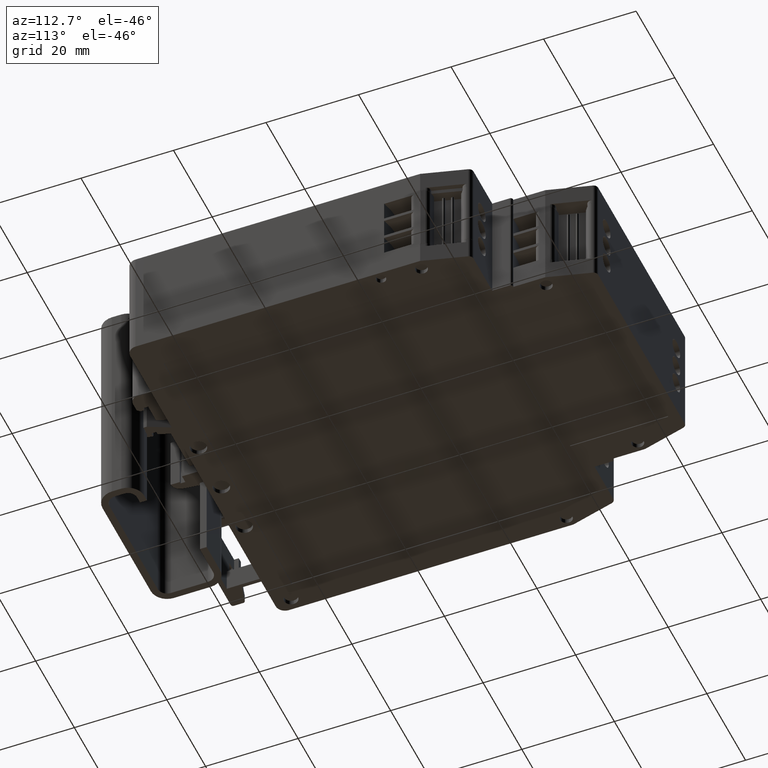
[diagram: clean part render]
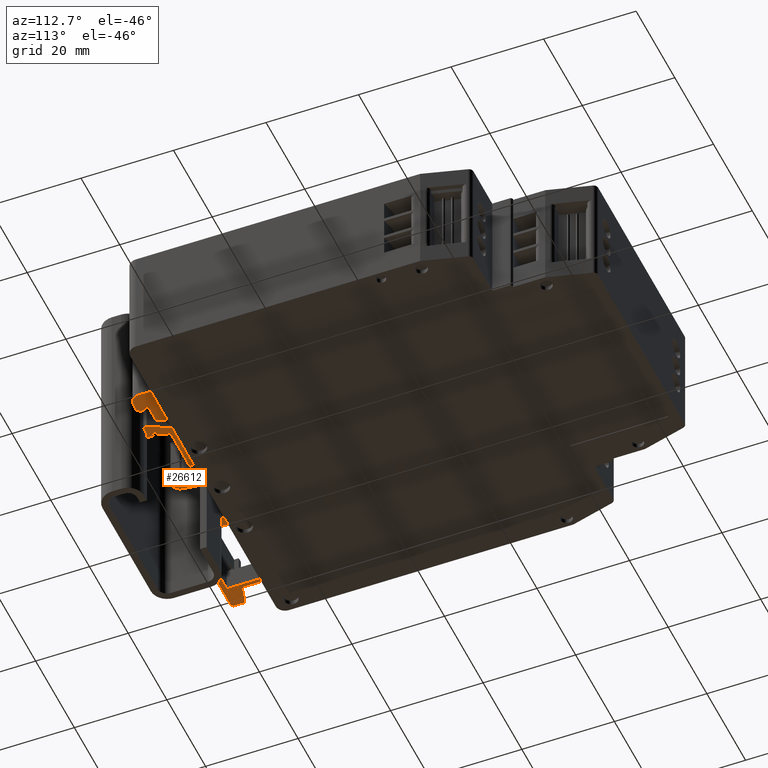
[diagram: same view with one face highlighted and labeled with its STEP entity id]
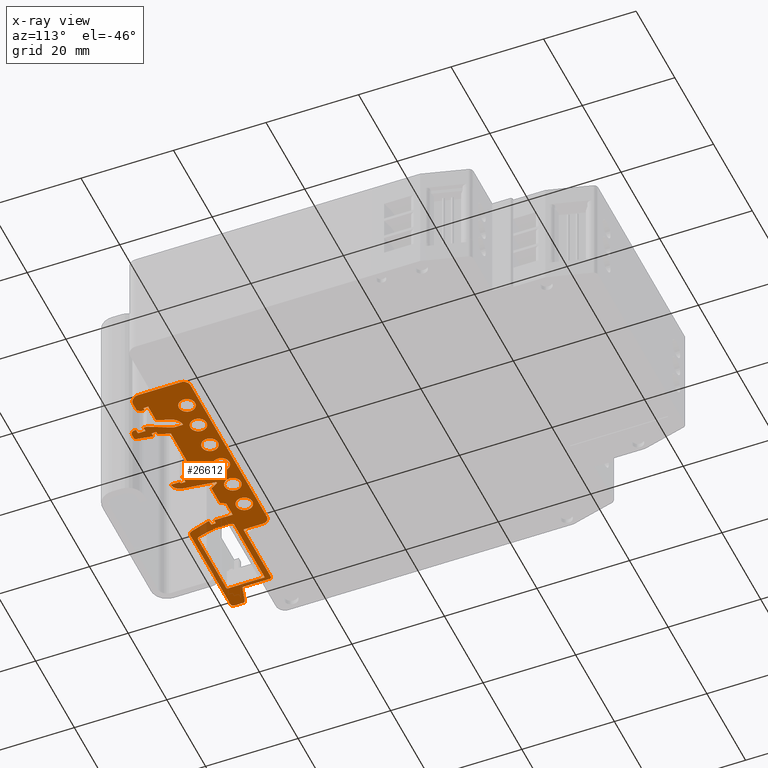
[diagram: x-ray of the same camera — body ghosted, the highlighted face saturated]
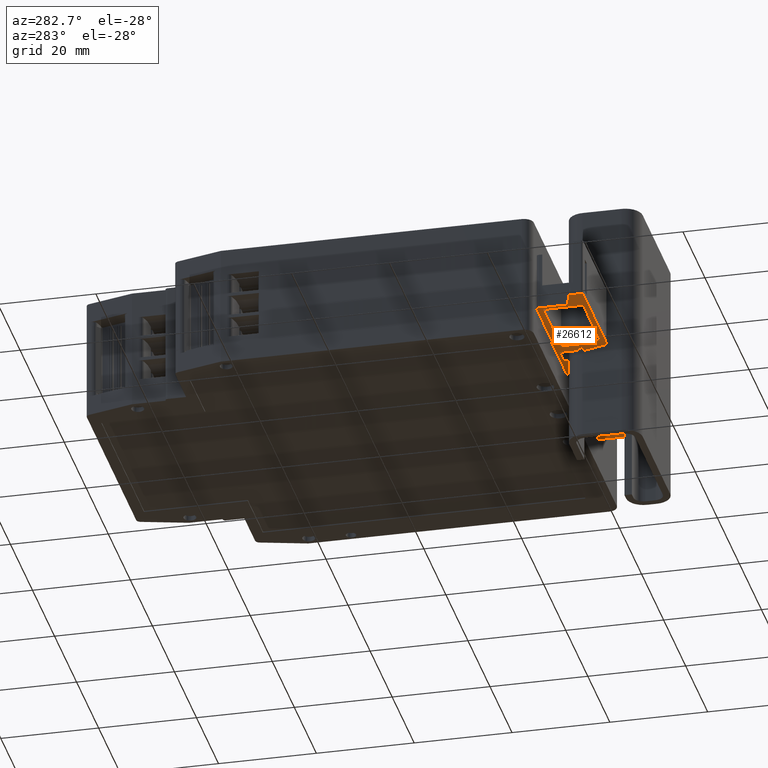
[diagram: same view with one face highlighted and labeled with its STEP entity id]
A machine part, auxiliary view. The second image highlights one B-rep face of the part: STEP entity #26612.
The next image is the same camera in x-ray: the body ghosted, the highlighted face saturated — about 4% of this face is hidden behind the body in this view.
A second angle (auxiliary view) of the same face is appended — the face is thin or edge-on in the first view.
In plain terms, the highlighted planar face has unit normal (0, 0, 1).
Its self-contained STEP definition (entity closure, byte-faithful):
#23650=CARTESIAN_POINT('',(391.350000000000020,52.0,0.0));
#23651=VERTEX_POINT('',#23650);
#23652=CARTESIAN_POINT('',(391.350000000000020,60.200000000000003,0.0));
#23653=VERTEX_POINT('',#23652);
#23654=CARTESIAN_POINT('',(391.350000000000020,52.0,0.0));
#23655=DIRECTION('',(0.0,1.0,0.0));
#23656=VECTOR('',#23655,8.200000000000003);
#23657=LINE('',#23654,#23656);
#23658=EDGE_CURVE('',#23651,#23653,#23657,.T.);
#23716=CARTESIAN_POINT('',(406.144539736285990,52.0,0.0));
#23717=VERTEX_POINT('',#23716);
#23724=CARTESIAN_POINT('',(406.144539736285990,52.0,0.0));
#23725=DIRECTION('',(-1.0,0.0,0.0));
#23726=VECTOR('',#23725,14.794539736285969);
#23727=LINE('',#23724,#23726);
#23728=EDGE_CURVE('',#23717,#23651,#23727,.T.);
#23769=CARTESIAN_POINT('',(407.699999999999990,60.200000000000003,0.0));
#23770=VERTEX_POINT('',#23769);
#23771=CARTESIAN_POINT('',(407.699999999999990,56.000000000000099,0.0));
#23772=VERTEX_POINT('',#23771);
#23773=CARTESIAN_POINT('',(407.699999999999990,60.200000000000003,0.0));
#23774=DIRECTION('',(0.0,-1.0,0.0));
#23775=VECTOR('',#23774,4.199999999999903);
#23776=LINE('',#23773,#23775);
#23777=EDGE_CURVE('',#23770,#23772,#23776,.T.);
#23809=CARTESIAN_POINT('',(406.727502649430960,52.370590477448808,0.0));
#23810=VERTEX_POINT('',#23809);
#23811=CARTESIAN_POINT('',(407.699999999999990,56.000000000000099,0.0));
#23812=DIRECTION('',(-0.258819045102417,-0.965925826289096,0.0));
#23813=VECTOR('',#23812,3.757441227650777);
#23814=LINE('',#23811,#23813);
#23815=EDGE_CURVE('',#23772,#23810,#23814,.T.);
#23840=CARTESIAN_POINT('',(406.194539736286000,52.565161268642100,0.0));
#23841=DIRECTION('',(0.0,0.0,1.0));
#23842=DIRECTION('',(1.0,0.0,0.0));
#23843=AXIS2_PLACEMENT_3D('',#23840,#23841,#23842);
#23844=CIRCLE('',#23843,0.567368715715929);
#23845=EDGE_CURVE('',#23717,#23810,#23844,.T.);
#23864=CARTESIAN_POINT('',(407.699999999999990,60.200000000000003,0.0));
#23865=DIRECTION('',(-1.0,0.0,0.0));
#23866=VECTOR('',#23865,16.349999999999966);
#23867=LINE('',#23864,#23866);
#23868=EDGE_CURVE('',#23770,#23653,#23867,.T.);
#23927=CARTESIAN_POINT('',(436.671830943409990,59.500000000000000,0.0));
#23928=VERTEX_POINT('',#23927);
#23945=CARTESIAN_POINT('',(438.949999999999990,54.614450692051093,0.0));
#23946=VERTEX_POINT('',#23945);
#23953=CARTESIAN_POINT('',(438.949999999999990,54.614450692051093,0.0));
#23954=DIRECTION('',(-0.422618261740634,0.906307787036680,0.0));
#23955=VECTOR('',#23954,5.390607228393126);
#23956=LINE('',#23953,#23955);
#23957=EDGE_CURVE('',#23946,#23928,#23956,.T.);
#23969=CARTESIAN_POINT('',(436.649999999999980,51.0,0.0));
#23970=VERTEX_POINT('',#23969);
#23985=CARTESIAN_POINT('',(435.979957473308050,54.799999999999997,0.0));
#23986=VERTEX_POINT('',#23985);
#23993=CARTESIAN_POINT('',(435.979957473308050,54.799999999999997,0.0));
#23994=DIRECTION('',(0.173648177666871,-0.984807753012219,0.0));
#23995=VECTOR('',#23994,3.858621125165787);
#23996=LINE('',#23993,#23995);
#23997=EDGE_CURVE('',#23986,#23970,#23996,.T.);
#24126=CARTESIAN_POINT('',(390.550000000000010,55.0,0.0));
#24127=VERTEX_POINT('',#24126);
#24151=CARTESIAN_POINT('',(390.550000000000010,60.899999999999999,0.0));
#24152=VERTEX_POINT('',#24151);
#24159=CARTESIAN_POINT('',(390.550000000000010,55.0,0.0));
#24160=DIRECTION('',(0.0,1.0,0.0));
#24161=VECTOR('',#24160,5.899999999999999);
#24162=LINE('',#24159,#24161);
#24163=EDGE_CURVE('',#24127,#24152,#24162,.T.);
#24175=CARTESIAN_POINT('',(438.949999999999990,52.0,0.0));
#24176=VERTEX_POINT('',#24175);
#24183=CARTESIAN_POINT('',(438.949999999999990,52.299999999999997,0.0));
#24184=VERTEX_POINT('',#24183);
#24185=CARTESIAN_POINT('',(438.949999999999990,52.299999999999997,0.0));
#24186=DIRECTION('',(0.0,-1.0,0.0));
#24187=VECTOR('',#24186,0.299999999999997);
#24188=LINE('',#24185,#24187);
#24189=EDGE_CURVE('',#24184,#24176,#24188,.T.);
#24213=CARTESIAN_POINT('',(437.949999999999990,53.899999999999999,0.0));
#24214=VERTEX_POINT('',#24213);
#24215=CARTESIAN_POINT('',(438.949999999999990,53.899999999999999,0.0));
#24216=VERTEX_POINT('',#24215);
#24217=CARTESIAN_POINT('',(437.949999999999990,53.899999999999999,0.0));
#24218=DIRECTION('',(1.0,0.0,0.0));
#24219=VECTOR('',#24218,1.0);
#24220=LINE('',#24217,#24219);
#24221=EDGE_CURVE('',#24214,#24216,#24220,.T.);
#24254=CARTESIAN_POINT('',(436.671830943409990,61.495393145525796,0.0));
#24255=VERTEX_POINT('',#24254);
#24256=CARTESIAN_POINT('',(436.671830943409990,59.500000000000000,0.0));
#24257=DIRECTION('',(0.0,1.0,0.0));
#24258=VECTOR('',#24257,1.995393145525796);
#24259=LINE('',#24256,#24258);
#24260=EDGE_CURVE('',#23928,#24255,#24259,.T.);
#24303=CARTESIAN_POINT('',(439.908515318218970,56.999999999958696,0.0));
#24304=VERTEX_POINT('',#24303);
#24319=CARTESIAN_POINT('',(438.869361970446960,59.855050358314202,0.0));
#24320=VERTEX_POINT('',#24319);
#24327=CARTESIAN_POINT('',(438.869361970446960,59.855050358314202,0.0));
#24328=DIRECTION('',(0.342020143325540,-0.939692620785955,0.0));
#24329=VECTOR('',#24328,3.038281130661165);
#24330=LINE('',#24327,#24329);
#24331=EDGE_CURVE('',#24320,#24304,#24330,.T.);
#24341=CARTESIAN_POINT('',(423.550000000000010,61.500000000000000,0.0));
#24342=VERTEX_POINT('',#24341);
#24343=CARTESIAN_POINT('',(425.550000000000010,61.500000000000000,0.0));
#24344=VERTEX_POINT('',#24343);
#24345=CARTESIAN_POINT('',(423.550000000000010,61.500000000000000,0.0));
#24346=DIRECTION('',(1.0,0.0,0.0));
#24347=VECTOR('',#24346,2.0);
#24348=LINE('',#24345,#24347);
#24349=EDGE_CURVE('',#24342,#24344,#24348,.T.);
#24381=CARTESIAN_POINT('',(443.949999999999990,56.999999999958696,0.0));
#24382=VERTEX_POINT('',#24381);
#24383=CARTESIAN_POINT('',(443.949999999999990,56.999999999958696,0.0));
#24384=DIRECTION('',(-1.0,0.0,0.0));
#24385=VECTOR('',#24384,4.041484681781014);
#24386=LINE('',#24383,#24385);
#24387=EDGE_CURVE('',#24382,#24304,#24386,.T.);
#24412=CARTESIAN_POINT('',(425.550000000000010,58.299999999999997,0.0));
#24413=VERTEX_POINT('',#24412);
#24414=CARTESIAN_POINT('',(435.296245059088960,58.299999999999997,0.0));
#24415=VERTEX_POINT('',#24414);
#24416=CARTESIAN_POINT('',(425.550000000000010,58.299999999999997,0.0));
#24417=DIRECTION('',(1.0,0.0,0.0));
#24418=VECTOR('',#24417,9.746245059088949);
#24419=LINE('',#24416,#24418);
#24420=EDGE_CURVE('',#24413,#24415,#24419,.T.);
#24461=CARTESIAN_POINT('',(436.850000000000020,54.799999999999997,0.0));
#24462=VERTEX_POINT('',#24461);
#24469=CARTESIAN_POINT('',(436.850000000000020,54.799999999999997,0.0));
#24470=DIRECTION('',(-1.0,0.0,0.0));
#24471=VECTOR('',#24470,0.870042526691975);
#24472=LINE('',#24469,#24471);
#24473=EDGE_CURVE('',#24462,#23986,#24472,.T.);
#24483=CARTESIAN_POINT('',(443.350000000000020,55.999999999958696,0.0));
#24484=VERTEX_POINT('',#24483);
#24485=CARTESIAN_POINT('',(443.350000000000020,55.100000000000001,0.0));
#24486=VERTEX_POINT('',#24485);
#24487=CARTESIAN_POINT('',(443.350000000000020,55.999999999958696,0.0));
#24488=DIRECTION('',(0.0,-1.0,0.0));
#24489=VECTOR('',#24488,0.899999999958695);
#24490=LINE('',#24487,#24489);
#24491=EDGE_CURVE('',#24484,#24486,#24490,.T.);
#24525=CARTESIAN_POINT('',(443.949999999999990,54.500000000000000,0.0));
#24526=VERTEX_POINT('',#24525);
#24540=CARTESIAN_POINT('',(443.350000000000020,55.100000000000001,0.0));
#24541=DIRECTION('',(0.707106781186527,-0.707106781186568,0.0));
#24542=VECTOR('',#24541,0.848528137423834);
#24543=LINE('',#24540,#24542);
#24544=EDGE_CURVE('',#24486,#24526,#24543,.T.);
#24554=CARTESIAN_POINT('',(437.949999999999990,51.0,0.0));
#24555=VERTEX_POINT('',#24554);
#24556=CARTESIAN_POINT('',(436.649999999999980,51.0,0.0));
#24557=DIRECTION('',(1.0,0.0,0.0));
#24558=VECTOR('',#24557,1.300000000000011);
#24559=LINE('',#24556,#24558);
#24560=EDGE_CURVE('',#23970,#24555,#24559,.T.);
#24585=CARTESIAN_POINT('',(445.699999999999990,54.500000000000000,0.0));
#24586=VERTEX_POINT('',#24585);
#24587=CARTESIAN_POINT('',(443.949999999999990,54.500000000000000,0.0));
#24588=DIRECTION('',(1.0,0.0,0.0));
#24589=VECTOR('',#24588,1.750000000000000);
#24590=LINE('',#24587,#24589);
#24591=EDGE_CURVE('',#24526,#24586,#24590,.T.);
#24616=CARTESIAN_POINT('',(447.699999999999990,56.500000000000000,0.0));
#24617=VERTEX_POINT('',#24616);
#24618=CARTESIAN_POINT('',(445.699999999999990,56.500000000000000,0.0));
#24619=DIRECTION('',(0.0,0.0,1.0));
#24620=DIRECTION('',(1.0,0.0,0.0));
#24621=AXIS2_PLACEMENT_3D('',#24618,#24619,#24620);
#24622=CIRCLE('',#24621,2.0);
#24623=EDGE_CURVE('',#24586,#24617,#24622,.T.);
#24649=CARTESIAN_POINT('',(447.699999999999990,65.599999999999994,0.0));
#24650=VERTEX_POINT('',#24649);
#24651=CARTESIAN_POINT('',(447.699999999999990,56.500000000000000,0.0));
#24652=DIRECTION('',(0.0,1.0,0.0));
#24653=VECTOR('',#24652,9.099999999999994);
#24654=LINE('',#24651,#24653);
#24655=EDGE_CURVE('',#24617,#24650,#24654,.T.);
#24680=CARTESIAN_POINT('',(446.199999999999990,67.099999999999994,0.0));
#24681=VERTEX_POINT('',#24680);
#24682=CARTESIAN_POINT('',(446.199999999999990,65.599999999999994,0.0));
#24683=DIRECTION('',(0.0,0.0,1.0));
#24684=DIRECTION('',(1.0,0.0,0.0));
#24685=AXIS2_PLACEMENT_3D('',#24682,#24683,#24684);
#24686=CIRCLE('',#24685,1.500000000000000);
#24687=EDGE_CURVE('',#24650,#24681,#24686,.T.);
#24713=CARTESIAN_POINT('',(406.699999999999990,67.099999999999994,0.0));
#24714=VERTEX_POINT('',#24713);
#24715=CARTESIAN_POINT('',(446.199999999999990,67.099999999999994,0.0));
#24716=DIRECTION('',(-1.0,0.0,0.0));
#24717=VECTOR('',#24716,39.500000000000000);
#24718=LINE('',#24715,#24717);
#24719=EDGE_CURVE('',#24681,#24714,#24718,.T.);
#24744=CARTESIAN_POINT('',(405.199999999999990,65.599999999999994,0.0));
#24745=VERTEX_POINT('',#24744);
#24746=CARTESIAN_POINT('',(406.699999999999990,65.599999999999994,0.0));
#24747=DIRECTION('',(0.0,0.0,1.0));
#24748=DIRECTION('',(1.0,0.0,0.0));
#24749=AXIS2_PLACEMENT_3D('',#24746,#24747,#24748);
#24750=CIRCLE('',#24749,1.500000000000000);
#24751=EDGE_CURVE('',#24714,#24745,#24750,.T.);
#24779=CARTESIAN_POINT('',(405.199999999999990,61.600000000000001,0.0));
#24780=VERTEX_POINT('',#24779);
#24794=CARTESIAN_POINT('',(405.199999999999990,65.599999999999994,0.0));
#24795=DIRECTION('',(0.0,-1.0,0.0));
#24796=VECTOR('',#24795,3.999999999999993);
#24797=LINE('',#24794,#24796);
#24798=EDGE_CURVE('',#24745,#24780,#24797,.T.);
#24809=CARTESIAN_POINT('',(436.520130418482040,59.0,0.0));
#24810=DIRECTION('',(0.0,0.0,1.0));
#24811=DIRECTION('',(1.0,0.0,0.0));
#24812=AXIS2_PLACEMENT_3D('',#24809,#24810,#24811);
#24813=CIRCLE('',#24812,2.500000000000057);
#24814=EDGE_CURVE('',#24320,#24255,#24813,.T.);
#24832=CARTESIAN_POINT('',(405.0,61.399999999999999,0.0));
#24833=VERTEX_POINT('',#24832);
#24834=CARTESIAN_POINT('',(391.050000000000010,61.399999999999999,0.0));
#24835=VERTEX_POINT('',#24834);
#24836=CARTESIAN_POINT('',(405.0,61.399999999999999,0.0));
#24837=DIRECTION('',(-1.0,0.0,0.0));
#24838=VECTOR('',#24837,13.949999999999989);
#24839=LINE('',#24836,#24838);
#24840=EDGE_CURVE('',#24833,#24835,#24839,.T.);
#24872=CARTESIAN_POINT('',(391.050000000000010,60.899999999999999,0.0));
#24873=DIRECTION('',(0.0,0.0,1.0));
#24874=DIRECTION('',(1.0,0.0,0.0));
#24875=AXIS2_PLACEMENT_3D('',#24872,#24873,#24874);
#24876=CIRCLE('',#24875,0.500000000000000);
#24877=EDGE_CURVE('',#24835,#24152,#24876,.T.);
#24921=CARTESIAN_POINT('',(425.550000000000010,61.500000000000000,0.0));
#24922=DIRECTION('',(0.0,-1.0,0.0));
#24923=VECTOR('',#24922,3.200000000000003);
#24924=LINE('',#24921,#24923);
#24925=EDGE_CURVE('',#24344,#24413,#24924,.T.);
#24935=CARTESIAN_POINT('',(386.820590477449000,54.000707730187401,0.0));
#24936=VERTEX_POINT('',#24935);
#24937=CARTESIAN_POINT('',(390.550000000000010,55.0,0.0));
#24938=DIRECTION('',(-0.965925826289061,-0.258819045102549,0.0));
#24939=VECTOR('',#24938,3.860968845691631);
#24940=LINE('',#24937,#24939);
#24941=EDGE_CURVE('',#24127,#24936,#24940,.T.);
#24959=CARTESIAN_POINT('',(386.449999999999990,53.517744817042896,0.0));
#24960=VERTEX_POINT('',#24959);
#24961=CARTESIAN_POINT('',(386.949999999999990,53.517744817042896,0.0));
#24962=DIRECTION('',(0.0,0.0,1.0));
#24963=DIRECTION('',(1.0,0.0,0.0));
#24964=AXIS2_PLACEMENT_3D('',#24961,#24962,#24963);
#24965=CIRCLE('',#24964,0.500000000000000);
#24966=EDGE_CURVE('',#24936,#24960,#24965,.T.);
#24984=CARTESIAN_POINT('',(386.449999999999990,51.500000000000000,0.0));
#24985=VERTEX_POINT('',#24984);
#24986=CARTESIAN_POINT('',(386.449999999999990,53.517744817042896,0.0));
#24987=DIRECTION('',(0.0,-1.0,0.0));
#24988=VECTOR('',#24987,2.017744817042896);
#24989=LINE('',#24986,#24988);
#24990=EDGE_CURVE('',#24960,#24985,#24989,.T.);
#25017=CARTESIAN_POINT('',(386.949999999999990,51.0,0.0));
#25018=VERTEX_POINT('',#25017);
#25019=CARTESIAN_POINT('',(386.949999999999990,51.500000000000000,0.0));
#25020=DIRECTION('',(0.0,0.0,1.0));
#25021=DIRECTION('',(1.0,0.0,0.0));
#25022=AXIS2_PLACEMENT_3D('',#25019,#25020,#25021);
#25023=CIRCLE('',#25022,0.500000000000000);
#25024=EDGE_CURVE('',#24985,#25018,#25023,.T.);
#25050=CARTESIAN_POINT('',(407.812002724355980,51.0,0.0));
#25051=VERTEX_POINT('',#25050);
#25052=CARTESIAN_POINT('',(386.949999999999990,51.0,0.0));
#25053=DIRECTION('',(1.0,0.0,0.0));
#25054=VECTOR('',#25053,20.862002724355989);
#25055=LINE('',#25052,#25054);
#25056=EDGE_CURVE('',#25018,#25051,#25055,.T.);
#25106=CARTESIAN_POINT('',(408.767561671095000,51.705199899410403,0.0));
#25107=VERTEX_POINT('',#25106);
#25108=CARTESIAN_POINT('',(407.812002724355980,52.0,0.0));
#25109=DIRECTION('',(0.0,0.0,1.0));
#25110=DIRECTION('',(1.0,0.0,0.0));
#25111=AXIS2_PLACEMENT_3D('',#25108,#25109,#25110);
#25112=CIRCLE('',#25111,1.0);
#25113=EDGE_CURVE('',#25051,#25107,#25112,.T.);
#25139=CARTESIAN_POINT('',(410.0,55.700000000000102,0.0));
#25140=VERTEX_POINT('',#25139);
#25141=CARTESIAN_POINT('',(408.767561671095000,51.705199899410403,0.0));
#25142=DIRECTION('',(0.294800100589526,0.955558946738717,0.0));
#25143=VECTOR('',#25142,4.180589919882795);
#25144=LINE('',#25141,#25143);
#25145=EDGE_CURVE('',#25107,#25140,#25144,.T.);
#25172=CARTESIAN_POINT('',(410.0,55.999999999958696,0.0));
#25173=VERTEX_POINT('',#25172);
#25187=CARTESIAN_POINT('',(410.0,55.700000000000102,0.0));
#25188=DIRECTION('',(0.0,1.0,0.0));
#25189=VECTOR('',#25188,0.299999999958594);
#25190=LINE('',#25187,#25189);
#25191=EDGE_CURVE('',#25140,#25173,#25190,.T.);
#25201=CARTESIAN_POINT('',(409.850000000000020,56.999999999958696,0.0));
#25202=VERTEX_POINT('',#25201);
#25219=CARTESIAN_POINT('',(408.949999999999990,56.999999999958696,0.0));
#25220=VERTEX_POINT('',#25219);
#25227=CARTESIAN_POINT('',(409.850000000000020,56.999999999958696,0.0));
#25228=DIRECTION('',(-1.0,0.0,0.0));
#25229=VECTOR('',#25228,0.900000000000034);
#25230=LINE('',#25227,#25229);
#25231=EDGE_CURVE('',#25202,#25220,#25230,.T.);
#25250=CARTESIAN_POINT('',(443.949999999999990,55.999999999958696,0.0));
#25251=VERTEX_POINT('',#25250);
#25258=CARTESIAN_POINT('',(443.350000000000020,55.999999999958696,0.0));
#25259=DIRECTION('',(1.0,0.0,0.0));
#25260=VECTOR('',#25259,0.599999999999966);
#25261=LINE('',#25258,#25260);
#25262=EDGE_CURVE('',#24484,#25251,#25261,.T.);
#25280=CARTESIAN_POINT('',(408.949999999999990,55.999999999958696,0.0));
#25281=VERTEX_POINT('',#25280);
#25288=CARTESIAN_POINT('',(408.949999999999990,56.999999999958696,0.0));
#25289=DIRECTION('',(0.0,-1.0,0.0));
#25290=VECTOR('',#25289,1.0);
#25291=LINE('',#25288,#25290);
#25292=EDGE_CURVE('',#25220,#25281,#25291,.T.);
#25305=CARTESIAN_POINT('',(409.850000000000020,61.0,0.0));
#25306=VERTEX_POINT('',#25305);
#25320=CARTESIAN_POINT('',(409.850000000000020,56.999999999958696,0.0));
#25321=DIRECTION('',(0.0,1.0,0.0));
#25322=VECTOR('',#25321,4.000000000041304);
#25323=LINE('',#25320,#25322);
#25324=EDGE_CURVE('',#25202,#25306,#25323,.T.);
#25334=CARTESIAN_POINT('',(408.949999999999990,55.999999999958696,0.0));
#25335=DIRECTION('',(1.0,0.0,0.0));
#25336=VECTOR('',#25335,1.050000000000011);
#25337=LINE('',#25334,#25336);
#25338=EDGE_CURVE('',#25281,#25173,#25337,.T.);
#25356=CARTESIAN_POINT('',(443.949999999999990,55.999999999958696,0.0));
#25357=DIRECTION('',(0.0,1.0,0.0));
#25358=VECTOR('',#25357,1.0);
#25359=LINE('',#25356,#25358);
#25360=EDGE_CURVE('',#25251,#24382,#25359,.T.);
#25379=CARTESIAN_POINT('',(405.0,61.600000000000001,0.0));
#25380=DIRECTION('',(0.0,0.0,-1.0));
#25381=DIRECTION('',(-1.0,0.0,0.0));
#25382=AXIS2_PLACEMENT_3D('',#25379,#25380,#25381);
#25383=CIRCLE('',#25382,0.199999999999989);
#25384=EDGE_CURVE('',#24780,#24833,#25383,.T.);
#25402=CARTESIAN_POINT('',(437.949999999999990,52.299999999999997,0.0));
#25403=VERTEX_POINT('',#25402);
#25404=CARTESIAN_POINT('',(437.949999999999990,52.299999999999997,0.0));
#25405=DIRECTION('',(0.0,1.0,0.0));
#25406=VECTOR('',#25405,1.600000000000001);
#25407=LINE('',#25404,#25406);
#25408=EDGE_CURVE('',#25403,#24214,#25407,.T.);
#25433=CARTESIAN_POINT('',(413.164914703892010,61.0,0.0));
#25434=VERTEX_POINT('',#25433);
#25435=CARTESIAN_POINT('',(409.850000000000020,61.0,0.0));
#25436=DIRECTION('',(1.0,0.0,0.0));
#25437=VECTOR('',#25436,3.314914703891986);
#25438=LINE('',#25435,#25437);
#25439=EDGE_CURVE('',#25306,#25434,#25438,.T.);
#25464=CARTESIAN_POINT('',(413.800000000000010,59.899999999999999,0.0));
#25465=VERTEX_POINT('',#25464);
#25466=CARTESIAN_POINT('',(413.164914703892010,61.0,0.0));
#25467=DIRECTION('',(0.499999999999653,-0.866025403784639,0.0));
#25468=VECTOR('',#25467,1.270170592216885);
#25469=LINE('',#25466,#25468);
#25470=EDGE_CURVE('',#25434,#25465,#25469,.T.);
#25495=CARTESIAN_POINT('',(418.199999999999990,59.899999999999999,0.0));
#25496=VERTEX_POINT('',#25495);
#25497=CARTESIAN_POINT('',(413.800000000000010,59.899999999999999,0.0));
#25498=DIRECTION('',(1.0,0.0,0.0));
#25499=VECTOR('',#25498,4.399999999999977);
#25500=LINE('',#25497,#25499);
#25501=EDGE_CURVE('',#25465,#25496,#25500,.T.);
#25528=CARTESIAN_POINT('',(419.123760430702990,61.500000000000000,0.0));
#25529=VERTEX_POINT('',#25528);
#25543=CARTESIAN_POINT('',(418.199999999999990,59.899999999999999,0.0));
#25544=DIRECTION('',(0.499999999999836,0.866025403784533,0.0));
#25545=VECTOR('',#25544,1.847520861406602);
#25546=LINE('',#25543,#25545);
#25547=EDGE_CURVE('',#25496,#25529,#25546,.T.);
#25576=CARTESIAN_POINT('',(419.410967809756930,61.500000000000000,0.0));
#25577=VERTEX_POINT('',#25576);
#25591=CARTESIAN_POINT('',(419.123760430702990,61.500000000000000,0.0));
#25592=DIRECTION('',(1.0,0.0,0.0));
#25593=VECTOR('',#25592,0.287207379053939);
#25594=LINE('',#25591,#25593);
#25595=EDGE_CURVE('',#25529,#25577,#25594,.T.);
#25623=CARTESIAN_POINT('',(438.949999999999990,54.614450692051093,0.0));
#25624=DIRECTION('',(0.0,-1.0,0.0));
#25625=VECTOR('',#25624,0.714450692051095);
#25626=LINE('',#25623,#25625);
#25627=EDGE_CURVE('',#23946,#24216,#25626,.T.);
#25657=CARTESIAN_POINT('',(436.850000000000020,55.799999999999997,0.0));
#25658=VERTEX_POINT('',#25657);
#25659=CARTESIAN_POINT('',(436.850000000000020,55.799999999999997,0.0));
#25660=DIRECTION('',(0.0,-1.0,0.0));
#25661=VECTOR('',#25660,1.0);
#25662=LINE('',#25659,#25661);
#25663=EDGE_CURVE('',#25658,#24462,#25662,.T.);
#25688=CARTESIAN_POINT('',(436.206170644754020,55.799999999999997,0.0));
#25689=VERTEX_POINT('',#25688);
#25690=CARTESIAN_POINT('',(436.206170644754020,55.799999999999997,0.0));
#25691=DIRECTION('',(1.0,0.0,0.0));
#25692=VECTOR('',#25691,0.643829355245998);
#25693=LINE('',#25690,#25692);
#25694=EDGE_CURVE('',#25689,#25658,#25693,.T.);
#25719=CARTESIAN_POINT('',(438.949999999999990,52.299999999999997,0.0));
#25720=DIRECTION('',(-1.0,0.0,0.0));
#25721=VECTOR('',#25720,1.0);
#25722=LINE('',#25719,#25721);
#25723=EDGE_CURVE('',#24184,#25403,#25722,.T.);
#25741=CARTESIAN_POINT('',(420.368602628747960,54.527852140929497,0.0));
#25742=VERTEX_POINT('',#25741);
#25743=CARTESIAN_POINT('',(419.410967809756930,61.500000000000000,0.0));
#25744=DIRECTION('',(0.136073929535178,-0.990698685625885,0.0));
#25745=VECTOR('',#25744,7.037606852850293);
#25746=LINE('',#25743,#25745);
#25747=EDGE_CURVE('',#25577,#25742,#25746,.T.);
#25774=CARTESIAN_POINT('',(422.250000000000000,52.802501564456200,0.0));
#25775=VERTEX_POINT('',#25774);
#25790=CARTESIAN_POINT('',(422.350000000000020,54.799999999999997,0.0));
#25791=DIRECTION('',(0.0,0.0,1.0));
#25792=DIRECTION('',(1.0,0.0,0.0));
#25793=AXIS2_PLACEMENT_3D('',#25790,#25791,#25792);
#25794=CIRCLE('',#25793,2.0);
#25795=EDGE_CURVE('',#25742,#25775,#25794,.T.);
#25805=CARTESIAN_POINT('',(435.296245059088960,58.299999999999997,0.0));
#25806=DIRECTION('',(0.342020143325522,-0.939692620785962,0.0));
#25807=VECTOR('',#25806,2.660444431189629);
#25808=LINE('',#25805,#25807);
#25809=EDGE_CURVE('',#24415,#25689,#25808,.T.);
#25827=CARTESIAN_POINT('',(422.250000000000000,54.799999999999997,0.0));
#25828=VERTEX_POINT('',#25827);
#25829=CARTESIAN_POINT('',(422.250000000000000,52.802501564456200,0.0));
#25830=DIRECTION('',(0.0,1.0,0.0));
#25831=VECTOR('',#25830,1.997498435543797);
#25832=LINE('',#25829,#25831);
#25833=EDGE_CURVE('',#25775,#25828,#25832,.T.);
#25858=CARTESIAN_POINT('',(421.850000000000020,54.799999999999997,0.0));
#25859=VERTEX_POINT('',#25858);
#25860=CARTESIAN_POINT('',(422.250000000000000,54.799999999999997,0.0));
#25861=DIRECTION('',(-1.0,0.0,0.0));
#25862=VECTOR('',#25861,0.399999999999977);
#25863=LINE('',#25860,#25862);
#25864=EDGE_CURVE('',#25828,#25859,#25863,.T.);
#25889=CARTESIAN_POINT('',(421.850000000000020,55.799999999999997,0.0));
#25890=VERTEX_POINT('',#25889);
#25891=CARTESIAN_POINT('',(421.850000000000020,54.799999999999997,0.0));
#25892=DIRECTION('',(0.0,1.0,0.0));
#25893=VECTOR('',#25892,1.0);
#25894=LINE('',#25891,#25893);
#25895=EDGE_CURVE('',#25859,#25890,#25894,.T.);
#25920=CARTESIAN_POINT('',(423.550000000000010,55.799999999999997,0.0));
#25921=VERTEX_POINT('',#25920);
#25922=CARTESIAN_POINT('',(421.850000000000020,55.799999999999997,0.0));
#25923=DIRECTION('',(1.0,0.0,0.0));
#25924=VECTOR('',#25923,1.699999999999989);
#25925=LINE('',#25922,#25924);
#25926=EDGE_CURVE('',#25890,#25921,#25925,.T.);
#25959=CARTESIAN_POINT('',(423.550000000000010,55.799999999999997,0.0));
#25960=DIRECTION('',(0.0,1.0,0.0));
#25961=VECTOR('',#25960,5.700000000000003);
#25962=LINE('',#25959,#25961);
#25963=EDGE_CURVE('',#25921,#24342,#25962,.T.);
#25982=CARTESIAN_POINT('',(437.949999999999990,52.0,0.0));
#25983=DIRECTION('',(0.0,0.0,-1.0));
#25984=DIRECTION('',(-1.0,0.0,0.0));
#25985=AXIS2_PLACEMENT_3D('',#25982,#25983,#25984);
#25986=CIRCLE('',#25985,1.0);
#25987=EDGE_CURVE('',#24176,#24555,#25986,.T.);
#26199=CARTESIAN_POINT('',(413.449999999999990,64.300000000000097,0.0));
#26200=VERTEX_POINT('',#26199);
#26207=CARTESIAN_POINT('',(409.949999999999990,64.300000000000097,0.0));
#26208=VERTEX_POINT('',#26207);
#26209=CARTESIAN_POINT('',(411.699999999999990,64.300000000000097,0.0));
#26210=DIRECTION('',(0.0,0.0,-1.0));
#26211=DIRECTION('',(-1.0,0.0,0.0));
#26212=AXIS2_PLACEMENT_3D('',#26209,#26210,#26211);
#26213=CIRCLE('',#26212,1.750000000000000);
#26214=EDGE_CURVE('',#26200,#26208,#26213,.T.);
#26231=CARTESIAN_POINT('',(431.199999999999990,64.300000000000097,0.0));
#26232=VERTEX_POINT('',#26231);
#26239=CARTESIAN_POINT('',(429.449999999999990,62.550000000000104,0.0));
#26240=VERTEX_POINT('',#26239);
#26241=CARTESIAN_POINT('',(429.449999999999990,64.300000000000097,0.0));
#26242=DIRECTION('',(0.0,0.0,-1.0));
#26243=DIRECTION('',(-1.0,0.0,0.0));
#26244=AXIS2_PLACEMENT_3D('',#26241,#26242,#26243);
#26245=CIRCLE('',#26244,1.750000000000000);
#26246=EDGE_CURVE('',#26232,#26240,#26245,.T.);
#26248=CARTESIAN_POINT('',(427.699999999999990,64.300000000000097,0.0));
#26249=VERTEX_POINT('',#26248);
#26250=CARTESIAN_POINT('',(429.449999999999990,64.300000000000097,0.0));
#26251=DIRECTION('',(0.0,0.0,-1.0));
#26252=DIRECTION('',(-1.0,0.0,0.0));
#26253=AXIS2_PLACEMENT_3D('',#26250,#26251,#26252);
#26254=CIRCLE('',#26253,1.750000000000000);
#26255=EDGE_CURVE('',#26240,#26249,#26254,.T.);
#26271=CARTESIAN_POINT('',(441.300000000000010,62.550000000000104,0.0));
#26272=VERTEX_POINT('',#26271);
#26273=CARTESIAN_POINT('',(441.300000000000010,66.050000000000097,0.0));
#26274=VERTEX_POINT('',#26273);
#26275=CARTESIAN_POINT('',(441.300000000000010,64.300000000000097,0.0));
#26276=DIRECTION('',(0.0,0.0,1.0));
#26277=DIRECTION('',(0.0,1.0,0.0));
#26278=AXIS2_PLACEMENT_3D('',#26275,#26276,#26277);
#26279=CIRCLE('',#26278,1.750000000000000);
#26280=EDGE_CURVE('',#26272,#26274,#26279,.T.);
#26304=CARTESIAN_POINT('',(419.350000000000020,64.300000000000097,0.0));
#26305=VERTEX_POINT('',#26304);
#26312=CARTESIAN_POINT('',(417.600000000000020,62.550000000000104,0.0));
#26313=VERTEX_POINT('',#26312);
#26314=CARTESIAN_POINT('',(417.600000000000020,64.300000000000097,0.0));
#26315=DIRECTION('',(0.0,0.0,-1.0));
#26316=DIRECTION('',(-1.0,0.0,0.0));
#26317=AXIS2_PLACEMENT_3D('',#26314,#26315,#26316);
#26318=CIRCLE('',#26317,1.750000000000000);
#26319=EDGE_CURVE('',#26305,#26313,#26318,.T.);
#26321=CARTESIAN_POINT('',(415.850000000000020,64.300000000000097,0.0));
#26322=VERTEX_POINT('',#26321);
#26323=CARTESIAN_POINT('',(417.600000000000020,64.300000000000097,0.0));
#26324=DIRECTION('',(0.0,0.0,-1.0));
#26325=DIRECTION('',(-1.0,0.0,0.0));
#26326=AXIS2_PLACEMENT_3D('',#26323,#26324,#26325);
#26327=CIRCLE('',#26326,1.750000000000000);
#26328=EDGE_CURVE('',#26313,#26322,#26327,.T.);
#26346=CARTESIAN_POINT('',(437.149999999999980,64.300000000000097,0.0));
#26347=VERTEX_POINT('',#26346);
#26354=CARTESIAN_POINT('',(433.649999999999980,64.300000000000097,0.0));
#26355=VERTEX_POINT('',#26354);
#26356=CARTESIAN_POINT('',(435.399999999999980,64.300000000000097,0.0));
#26357=DIRECTION('',(0.0,0.0,-1.0));
#26358=DIRECTION('',(-1.0,0.0,0.0));
#26359=AXIS2_PLACEMENT_3D('',#26356,#26357,#26358);
#26360=CIRCLE('',#26359,1.750000000000000);
#26361=EDGE_CURVE('',#26347,#26355,#26360,.T.);
#26378=CARTESIAN_POINT('',(425.300000000000010,64.300000000000097,0.0));
#26379=VERTEX_POINT('',#26378);
#26386=CARTESIAN_POINT('',(421.800000000000010,64.300000000000097,0.0));
#26387=VERTEX_POINT('',#26386);
#26388=CARTESIAN_POINT('',(423.550000000000010,64.300000000000097,0.0));
#26389=DIRECTION('',(0.0,0.0,-1.0));
#26390=DIRECTION('',(-1.0,0.0,0.0));
#26391=AXIS2_PLACEMENT_3D('',#26388,#26389,#26390);
#26392=CIRCLE('',#26391,1.750000000000000);
#26393=EDGE_CURVE('',#26379,#26387,#26392,.T.);
#26410=CARTESIAN_POINT('',(435.399999999999980,64.300000000000097,0.0));
#26411=DIRECTION('',(0.0,0.0,-1.0));
#26412=DIRECTION('',(-1.0,0.0,0.0));
#26413=AXIS2_PLACEMENT_3D('',#26410,#26411,#26412);
#26414=CIRCLE('',#26413,1.750000000000000);
#26415=EDGE_CURVE('',#26355,#26347,#26414,.T.);
#26430=CARTESIAN_POINT('',(429.449999999999990,64.300000000000097,0.0));
#26431=DIRECTION('',(0.0,0.0,-1.0));
#26432=DIRECTION('',(-1.0,0.0,0.0));
#26433=AXIS2_PLACEMENT_3D('',#26430,#26431,#26432);
#26434=CIRCLE('',#26433,1.750000000000000);
#26435=EDGE_CURVE('',#26249,#26232,#26434,.T.);
#26446=CARTESIAN_POINT('',(423.550000000000010,64.300000000000097,0.0));
#26447=DIRECTION('',(0.0,0.0,-1.0));
#26448=DIRECTION('',(-1.0,0.0,0.0));
#26449=AXIS2_PLACEMENT_3D('',#26446,#26447,#26448);
#26450=CIRCLE('',#26449,1.750000000000000);
#26451=EDGE_CURVE('',#26387,#26379,#26450,.T.);
#26466=CARTESIAN_POINT('',(441.300000000000010,64.300000000000097,0.0));
#26467=DIRECTION('',(0.0,0.0,1.0));
#26468=DIRECTION('',(0.0,1.0,0.0));
#26469=AXIS2_PLACEMENT_3D('',#26466,#26467,#26468);
#26470=CIRCLE('',#26469,1.750000000000000);
#26471=EDGE_CURVE('',#26274,#26272,#26470,.T.);
#26482=CARTESIAN_POINT('',(411.699999999999990,64.300000000000097,0.0));
#26483=DIRECTION('',(0.0,0.0,-1.0));
#26484=DIRECTION('',(-1.0,0.0,0.0));
#26485=AXIS2_PLACEMENT_3D('',#26482,#26483,#26484);
#26486=CIRCLE('',#26485,1.750000000000000);
#26487=EDGE_CURVE('',#26208,#26200,#26486,.T.);
#26502=CARTESIAN_POINT('',(417.600000000000020,64.300000000000097,0.0));
#26503=DIRECTION('',(0.0,0.0,-1.0));
#26504=DIRECTION('',(-1.0,0.0,0.0));
#26505=AXIS2_PLACEMENT_3D('',#26502,#26503,#26504);
#26506=CIRCLE('',#26505,1.750000000000000);
#26507=EDGE_CURVE('',#26322,#26305,#26506,.T.);
#26512=CARTESIAN_POINT('',(0.0,0.0,0.0));
#26513=DIRECTION('',(0.0,0.0,1.0));
#26514=DIRECTION('',(1.0,0.0,0.0));
#26515=AXIS2_PLACEMENT_3D('',#26512,#26513,#26514);
#26516=PLANE('',#26515);
#26517=ORIENTED_EDGE('',*,*,#24544,.F.);
#26518=ORIENTED_EDGE('',*,*,#24491,.F.);
#26519=ORIENTED_EDGE('',*,*,#25262,.T.);
#26520=ORIENTED_EDGE('',*,*,#25360,.T.);
#26521=ORIENTED_EDGE('',*,*,#24387,.T.);
#26522=ORIENTED_EDGE('',*,*,#24331,.F.);
#26523=ORIENTED_EDGE('',*,*,#24814,.T.);
#26524=ORIENTED_EDGE('',*,*,#24260,.F.);
#26525=ORIENTED_EDGE('',*,*,#23957,.F.);
#26526=ORIENTED_EDGE('',*,*,#25627,.T.);
#26527=ORIENTED_EDGE('',*,*,#24221,.F.);
#26528=ORIENTED_EDGE('',*,*,#25408,.F.);
#26529=ORIENTED_EDGE('',*,*,#25723,.F.);
#26530=ORIENTED_EDGE('',*,*,#24189,.T.);
#26531=ORIENTED_EDGE('',*,*,#25987,.T.);
#26532=ORIENTED_EDGE('',*,*,#24560,.F.);
#26533=ORIENTED_EDGE('',*,*,#23997,.F.);
#26534=ORIENTED_EDGE('',*,*,#24473,.F.);
#26535=ORIENTED_EDGE('',*,*,#25663,.F.);
#26536=ORIENTED_EDGE('',*,*,#25694,.F.);
#26537=ORIENTED_EDGE('',*,*,#25809,.F.);
#26538=ORIENTED_EDGE('',*,*,#24420,.F.);
#26539=ORIENTED_EDGE('',*,*,#24925,.F.);
#26540=ORIENTED_EDGE('',*,*,#24349,.F.);
#26541=ORIENTED_EDGE('',*,*,#25963,.F.);
#26542=ORIENTED_EDGE('',*,*,#25926,.F.);
#26543=ORIENTED_EDGE('',*,*,#25895,.F.);
#26544=ORIENTED_EDGE('',*,*,#25864,.F.);
#26545=ORIENTED_EDGE('',*,*,#25833,.F.);
#26546=ORIENTED_EDGE('',*,*,#25795,.F.);
#26547=ORIENTED_EDGE('',*,*,#25747,.F.);
#26548=ORIENTED_EDGE('',*,*,#25595,.F.);
#26549=ORIENTED_EDGE('',*,*,#25547,.F.);
#26550=ORIENTED_EDGE('',*,*,#25501,.F.);
#26551=ORIENTED_EDGE('',*,*,#25470,.F.);
#26552=ORIENTED_EDGE('',*,*,#25439,.F.);
#26553=ORIENTED_EDGE('',*,*,#25324,.F.);
#26554=ORIENTED_EDGE('',*,*,#25231,.T.);
#26555=ORIENTED_EDGE('',*,*,#25292,.T.);
#26556=ORIENTED_EDGE('',*,*,#25338,.T.);
#26557=ORIENTED_EDGE('',*,*,#25191,.F.);
#26558=ORIENTED_EDGE('',*,*,#25145,.F.);
#26559=ORIENTED_EDGE('',*,*,#25113,.F.);
#26560=ORIENTED_EDGE('',*,*,#25056,.F.);
#26561=ORIENTED_EDGE('',*,*,#25024,.F.);
#26562=ORIENTED_EDGE('',*,*,#24990,.F.);
#26563=ORIENTED_EDGE('',*,*,#24966,.F.);
#26564=ORIENTED_EDGE('',*,*,#24941,.F.);
#26565=ORIENTED_EDGE('',*,*,#24163,.T.);
#26566=ORIENTED_EDGE('',*,*,#24877,.F.);
#26567=ORIENTED_EDGE('',*,*,#24840,.F.);
#26568=ORIENTED_EDGE('',*,*,#25384,.F.);
#26569=ORIENTED_EDGE('',*,*,#24798,.F.);
#26570=ORIENTED_EDGE('',*,*,#24751,.F.);
#26571=ORIENTED_EDGE('',*,*,#24719,.F.);
#26572=ORIENTED_EDGE('',*,*,#24687,.F.);
#26573=ORIENTED_EDGE('',*,*,#24655,.F.);
#26574=ORIENTED_EDGE('',*,*,#24623,.F.);
#26575=ORIENTED_EDGE('',*,*,#24591,.F.);
#26576=EDGE_LOOP('',(#26517,#26518,#26519,#26520,#26521,#26522,#26523,#26524,#26525,#26526,#26527,#26528,#26529,#26530,#26531,#26532,#26533,#26534,#26535,#26536,#26537,#26538,#26539,#26540,#26541,#26542,#26543,#26544,#26545,#26546,#26547,#26548,#26549,#26550,#26551,#26552,#26553,#26554,#26555,#26556,#26557,#26558,#26559,#26560,#26561,#26562,#26563,#26564,#26565,#26566,#26567,#26568,#26569,#26570,#26571,#26572,#26573,#26574,#26575));
#26577=FACE_OUTER_BOUND('',#26576,.T.);
#26578=ORIENTED_EDGE('',*,*,#26361,.F.);
#26579=ORIENTED_EDGE('',*,*,#26415,.F.);
#26580=EDGE_LOOP('',(#26578,#26579));
#26581=FACE_BOUND('',#26580,.T.);
#26582=ORIENTED_EDGE('',*,*,#26393,.F.);
#26583=ORIENTED_EDGE('',*,*,#26451,.F.);
#26584=EDGE_LOOP('',(#26582,#26583));
#26585=FACE_BOUND('',#26584,.T.);
#26586=ORIENTED_EDGE('',*,*,#23777,.F.);
#26587=ORIENTED_EDGE('',*,*,#23868,.T.);
#26588=ORIENTED_EDGE('',*,*,#23658,.F.);
#26589=ORIENTED_EDGE('',*,*,#23728,.F.);
#26590=ORIENTED_EDGE('',*,*,#23845,.T.);
#26591=ORIENTED_EDGE('',*,*,#23815,.F.);
#26592=EDGE_LOOP('',(#26586,#26587,#26588,#26589,#26590,#26591));
#26593=FACE_BOUND('',#26592,.T.);
#26594=ORIENTED_EDGE('',*,*,#26280,.T.);
#26595=ORIENTED_EDGE('',*,*,#26471,.T.);
#26596=EDGE_LOOP('',(#26594,#26595));
#26597=FACE_BOUND('',#26596,.T.);
#26598=ORIENTED_EDGE('',*,*,#26246,.F.);
#26599=ORIENTED_EDGE('',*,*,#26435,.F.);
#26600=ORIENTED_EDGE('',*,*,#26255,.F.);
#26601=EDGE_LOOP('',(#26598,#26599,#26600));
#26602=FACE_BOUND('',#26601,.T.);
#26603=ORIENTED_EDGE('',*,*,#26214,.F.);
#26604=ORIENTED_EDGE('',*,*,#26487,.F.);
#26605=EDGE_LOOP('',(#26603,#26604));
#26606=FACE_BOUND('',#26605,.T.);
#26607=ORIENTED_EDGE('',*,*,#26319,.F.);
#26608=ORIENTED_EDGE('',*,*,#26507,.F.);
#26609=ORIENTED_EDGE('',*,*,#26328,.F.);
#26610=EDGE_LOOP('',(#26607,#26608,#26609));
#26611=FACE_BOUND('',#26610,.T.);
#26612=ADVANCED_FACE('',(#26577,#26581,#26585,#26593,#26597,#26602,#26606,#26611),#26516,.F.);